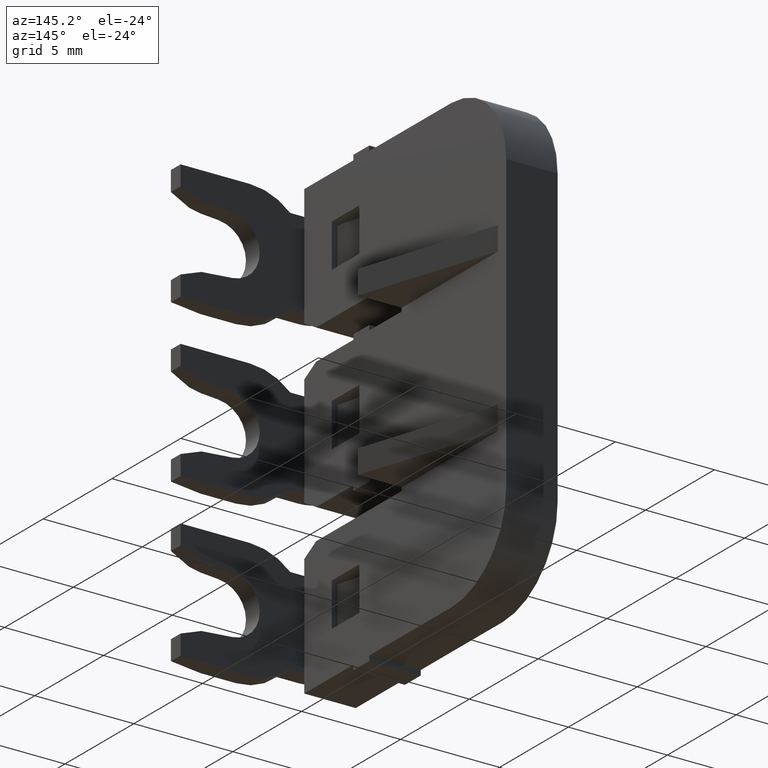
[diagram: clean part render]
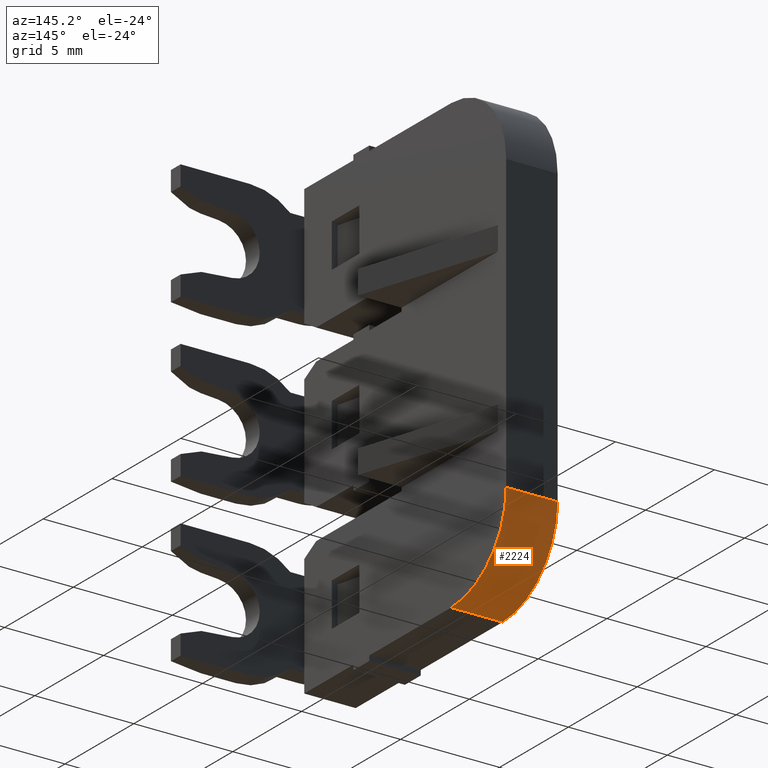
[diagram: same view with one face highlighted and labeled with its STEP entity id]
A machine part, auxiliary view. The second image highlights one B-rep face of the part: STEP entity #2224.
In plain terms, the highlighted cylindrical surface (partial cylindrical patch) has radius 4 mm, axis along (-1, -0, 0).
Its self-contained STEP definition (entity closure, byte-faithful):
#94 = LINE ( 'NONE', #109, #1229 ) ;
#107 = LINE ( 'NONE', #116, #1234 ) ;
#109 = CARTESIAN_POINT ( 'NONE',  ( 1492.445209356660100, 1090.934526901996200, -15.54999999809330000 ) ) ;
#113 = DIRECTION ( 'NONE',  ( 1.000000000000000000, 3.538835890992685300E-015, -3.039180497173570300E-015 ) ) ;
#116 = CARTESIAN_POINT ( 'NONE',  ( 1495.045209356660100, 1094.934526901996200, -11.54999999809326100 ) ) ;
#119 = DIRECTION ( 'NONE',  ( -1.000000000000000000, -3.538835890992685300E-015, 3.039180497173570300E-015 ) ) ;
#199 = CARTESIAN_POINT ( 'NONE',  ( 1495.045209356660100, 1090.934526901996200, -11.54999999809322900 ) ) ;
#220 = DIRECTION ( 'NONE',  ( 1.000000000000000000, 3.538835890992685300E-015, -3.250333119651810100E-015 ) ) ;
#221 = DIRECTION ( 'NONE',  ( 0.0000000000000000000, -1.000000000000000000, -8.673617379884027600E-016 ) ) ;
#273 = ORIENTED_EDGE ( 'NONE', *, *, #1879, .F. ) ;
#301 = ORIENTED_EDGE ( 'NONE', *, *, #1920, .T. ) ;
#317 = ORIENTED_EDGE ( 'NONE', *, *, #1917, .T. ) ;
#1078 = DIRECTION ( 'NONE',  ( 0.0000000000000000000, 1.000000000000000000, 0.0000000000000000000 ) ) ;
#1088 = CARTESIAN_POINT ( 'NONE',  ( 1492.445209356660100, 1090.934526901996200, -11.54999999809322000 ) ) ;
#1096 = DIRECTION ( 'NONE',  ( -1.000000000000000000, -3.538835890992685300E-015, 3.497202527569245500E-015 ) ) ;
#1174 = AXIS2_PLACEMENT_3D ( 'NONE', #1088, #1096, #1078 ) ;
#1213 = CIRCLE ( 'NONE', #1174, 4.000000000000003600 ) ;
#1229 = VECTOR ( 'NONE', #119, 1000.000000000000000 ) ;
#1234 = VECTOR ( 'NONE', #113, 1000.000000000000000 ) ;
#1269 = CIRCLE ( 'NONE', #1283, 4.000000000000003600 ) ;
#1283 = AXIS2_PLACEMENT_3D ( 'NONE', #199, #220, #221 ) ;
#1557 = AXIS2_PLACEMENT_3D ( 'NONE', #3367, #3396, #3389 ) ;
#1879 = EDGE_CURVE ( 'NONE', #2859, #2881, #1213, .T. ) ;
#1917 = EDGE_CURVE ( 'NONE', #2859, #2904, #107, .T. ) ;
#1920 = EDGE_CURVE ( 'NONE', #2815, #2881, #94, .T. ) ;
#1953 = EDGE_CURVE ( 'NONE', #2815, #2904, #1269, .T. ) ;
#2224 = ADVANCED_FACE ( 'NONE', ( #3366 ), #3368, .T. ) ;
#2716 = ORIENTED_EDGE ( 'NONE', *, *, #1953, .F. ) ;
#2815 = VERTEX_POINT ( 'NONE', #4929 ) ;
#2859 = VERTEX_POINT ( 'NONE', #4294 ) ;
#2881 = VERTEX_POINT ( 'NONE', #4317 ) ;
#2904 = VERTEX_POINT ( 'NONE', #4388 ) ;
#3179 = EDGE_LOOP ( 'NONE', ( #317, #2716, #301, #273 ) ) ;
#3366 = FACE_OUTER_BOUND ( 'NONE', #3179, .T. ) ;
#3367 = CARTESIAN_POINT ( 'NONE',  ( 1492.445209356660100, 1090.934526901996200, -11.54999999809322000 ) ) ;
#3368 = CYLINDRICAL_SURFACE ( 'NONE', #1557, 4.000000000000000000 ) ;
#3389 = DIRECTION ( 'NONE',  ( 0.0000000000000000000, 0.0000000000000000000, -1.000000000000000000 ) ) ;
#3396 = DIRECTION ( 'NONE',  ( -1.000000000000000000, -3.538835890992685300E-015, 3.003463711734375200E-015 ) ) ;
#4294 = CARTESIAN_POINT ( 'NONE',  ( 1492.445209356660100, 1094.934526901996200, -11.54999999809325200 ) ) ;
#4317 = CARTESIAN_POINT ( 'NONE',  ( 1492.445209356660100, 1090.934526901996200, -15.54999999809330000 ) ) ;
#4388 = CARTESIAN_POINT ( 'NONE',  ( 1495.045209356660100, 1094.934526901996200, -11.54999999809326100 ) ) ;
#4929 = CARTESIAN_POINT ( 'NONE',  ( 1495.045209356660100, 1090.934526901996200, -15.54999999809330900 ) ) ;